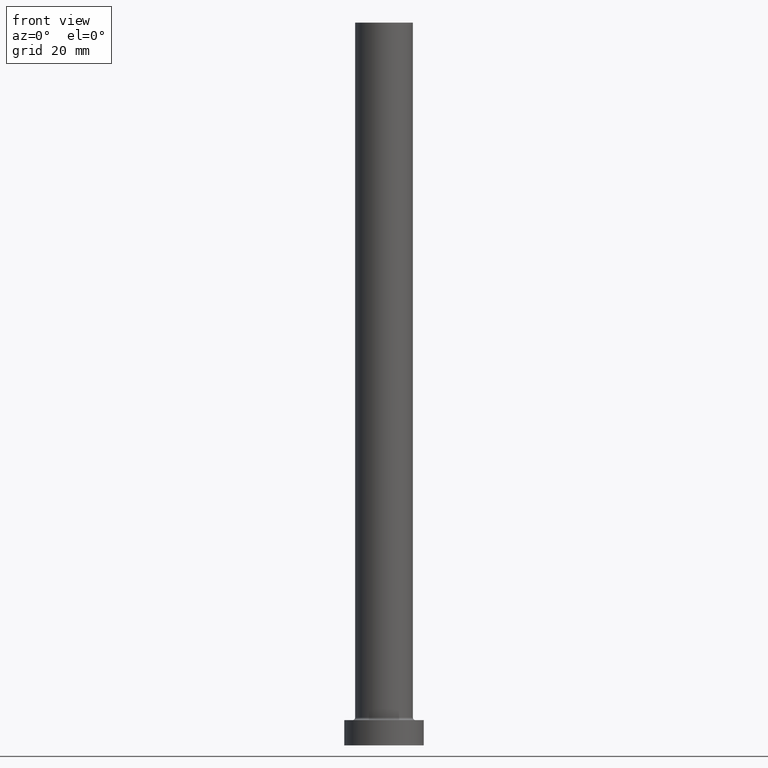
[diagram: clean part render]
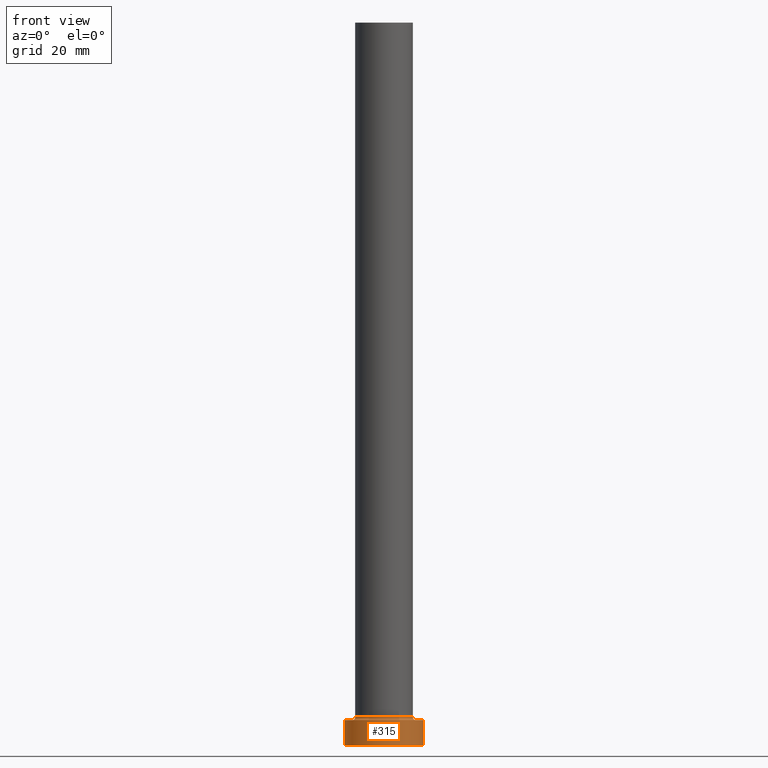
[diagram: same view with one face highlighted and labeled with its STEP entity id]
A machine part, front view. The second image highlights one B-rep face of the part: STEP entity #315.
In plain terms, the highlighted cylindrical surface (partial cylindrical patch) has radius 11 mm, axis along (-0, -0, -1).
Its self-contained STEP definition (entity closure, byte-faithful):
#1 = CARTESIAN_POINT ( 'NONE',  ( -11.00000000000000000, 0.000000000000000000, 7.000000000000000000 ) ) ;
#13 = ORIENTED_EDGE ( 'NONE', *, *, #88, .T. ) ;
#36 = EDGE_CURVE ( 'NONE', #352, #305, #287, .T. ) ;
#54 = CARTESIAN_POINT ( 'NONE',  ( -11.00000000000000000, 0.000000000000000000, 7.000000000000000000 ) ) ;
#84 = FACE_OUTER_BOUND ( 'NONE', #275, .T. ) ;
#87 = ORIENTED_EDGE ( 'NONE', *, *, #321, .F. ) ;
#88 = EDGE_CURVE ( 'NONE', #155, #305, #91, .T. ) ;
#90 = CARTESIAN_POINT ( 'NONE',  ( 0.000000000000000000, 0.000000000000000000, 7.000000000000000000 ) ) ;
#91 = CIRCLE ( 'NONE', #447, 11.00000000000000000 ) ;
#98 = CARTESIAN_POINT ( 'NONE',  ( 11.00000000000000000, 1.347111479062088405E-15, 7.000000000000000000 ) ) ;
#99 = EDGE_CURVE ( 'NONE', #345, #155, #242, .T. ) ;
#122 = CARTESIAN_POINT ( 'NONE',  ( 11.00000000000000000, 1.347111479062088405E-15, 7.000000000000000000 ) ) ;
#134 = CARTESIAN_POINT ( 'NONE',  ( 0.000000000000000000, 0.000000000000000000, 0.000000000000000000 ) ) ;
#137 = AXIS2_PLACEMENT_3D ( 'NONE', #90, #435, #437 ) ;
#155 = VERTEX_POINT ( 'NONE', #430 ) ;
#189 = DIRECTION ( 'NONE',  ( 1.000000000000000000, 0.000000000000000000, 0.000000000000000000 ) ) ;
#228 = ORIENTED_EDGE ( 'NONE', *, *, #36, .F. ) ;
#232 = DIRECTION ( 'NONE',  ( 0.000000000000000000, 0.000000000000000000, 1.000000000000000000 ) ) ;
#242 = LINE ( 'NONE', #1, #362 ) ;
#262 = CYLINDRICAL_SURFACE ( 'NONE', #137, 11.00000000000000000 ) ;
#275 = EDGE_LOOP ( 'NONE', ( #228, #87, #320, #13 ) ) ;
#280 = DIRECTION ( 'NONE',  ( 0.000000000000000000, 0.000000000000000000, 1.000000000000000000 ) ) ;
#287 = LINE ( 'NONE', #98, #293 ) ;
#293 = VECTOR ( 'NONE', #425, 1000.000000000000000 ) ;
#305 = VERTEX_POINT ( 'NONE', #409 ) ;
#311 = AXIS2_PLACEMENT_3D ( 'NONE', #337, #232, #189 ) ;
#315 = ADVANCED_FACE ( 'NONE', ( #84 ), #262, .T. ) ;
#320 = ORIENTED_EDGE ( 'NONE', *, *, #99, .T. ) ;
#321 = EDGE_CURVE ( 'NONE', #345, #352, #342, .T. ) ;
#337 = CARTESIAN_POINT ( 'NONE',  ( 0.000000000000000000, 0.000000000000000000, 7.000000000000000000 ) ) ;
#342 = CIRCLE ( 'NONE', #311, 11.00000000000000000 ) ;
#345 = VERTEX_POINT ( 'NONE', #54 ) ;
#352 = VERTEX_POINT ( 'NONE', #122 ) ;
#362 = VECTOR ( 'NONE', #434, 1000.000000000000000 ) ;
#409 = CARTESIAN_POINT ( 'NONE',  ( 11.00000000000000000, 1.347111479062088405E-15, 0.000000000000000000 ) ) ;
#418 = DIRECTION ( 'NONE',  ( 1.000000000000000000, 0.000000000000000000, 0.000000000000000000 ) ) ;
#425 = DIRECTION ( 'NONE',  ( -0.000000000000000000, -0.000000000000000000, -1.000000000000000000 ) ) ;
#430 = CARTESIAN_POINT ( 'NONE',  ( -11.00000000000000000, 0.000000000000000000, 0.000000000000000000 ) ) ;
#434 = DIRECTION ( 'NONE',  ( -0.000000000000000000, -0.000000000000000000, -1.000000000000000000 ) ) ;
#435 = DIRECTION ( 'NONE',  ( -0.000000000000000000, -0.000000000000000000, -1.000000000000000000 ) ) ;
#437 = DIRECTION ( 'NONE',  ( -1.000000000000000000, 0.000000000000000000, 0.000000000000000000 ) ) ;
#447 = AXIS2_PLACEMENT_3D ( 'NONE', #134, #280, #418 ) ;